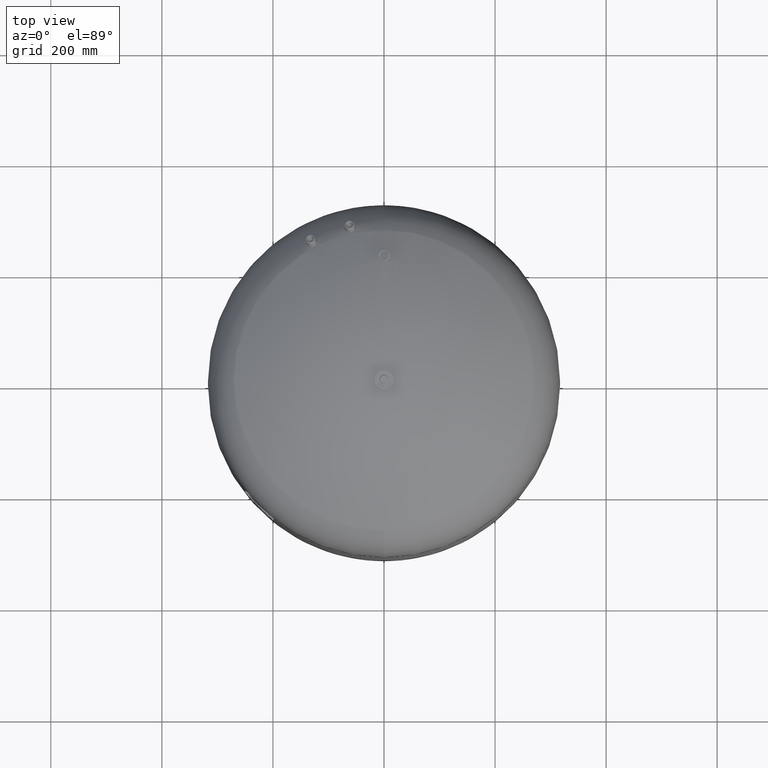
[diagram: clean part render]
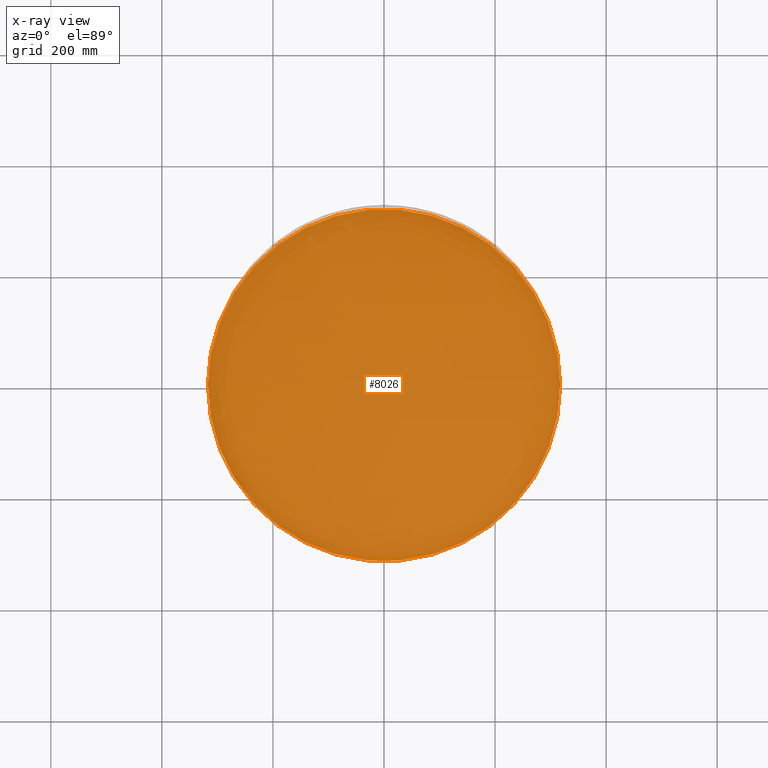
[diagram: x-ray — body ghosted, one internal face saturated and labeled with its STEP entity id]
A machine part, top view, then the same camera in x-ray: the body is ghosted and one INTERNAL B-rep face — a face not visible from any outside direction — is saturated and labeled: STEP entity #8026.
In plain terms, the highlighted planar face has unit normal (0, 0, 1).
Its self-contained STEP definition (entity closure, byte-faithful):
#7824=CARTESIAN_POINT('',(-317.0,-2.975892E-014,351.999999999999890));
#7825=VERTEX_POINT('',#7824);
#7834=CARTESIAN_POINT('',(317.0,9.061104E-015,351.999999999999940));
#7835=VERTEX_POINT('',#7834);
#7836=CARTESIAN_POINT('',(-1.558411E-014,-2.975892E-014,351.999999999999890));
#7837=DIRECTION('',(0.0,0.0,1.0));
#7838=DIRECTION('',(-1.0,0.0,0.0));
#7839=AXIS2_PLACEMENT_3D('',#7836,#7837,#7838);
#7840=CIRCLE('',#7839,317.0);
#7841=EDGE_CURVE('',#7835,#7825,#7840,.T.);
#8007=CARTESIAN_POINT('',(-1.558411E-014,-2.975892E-014,351.999999999999890));
#8008=DIRECTION('',(0.0,0.0,1.0));
#8009=DIRECTION('',(-1.0,0.0,0.0));
#8010=AXIS2_PLACEMENT_3D('',#8007,#8008,#8009);
#8011=CIRCLE('',#8010,317.0);
#8012=EDGE_CURVE('',#7825,#7835,#8011,.T.);
#8017=CARTESIAN_POINT('',(-158.500000000000000,-2.975892E-014,351.999999999999940));
#8018=DIRECTION('',(0.0,0.0,1.0));
#8019=DIRECTION('',(0.0,-1.0,0.0));
#8020=AXIS2_PLACEMENT_3D('',#8017,#8018,#8019);
#8021=PLANE('',#8020);
#8022=ORIENTED_EDGE('',*,*,#8012,.T.);
#8023=ORIENTED_EDGE('',*,*,#7841,.T.);
#8024=EDGE_LOOP('',(#8022,#8023));
#8025=FACE_OUTER_BOUND('',#8024,.T.);
#8026=ADVANCED_FACE('',(#8025),#8021,.T.);